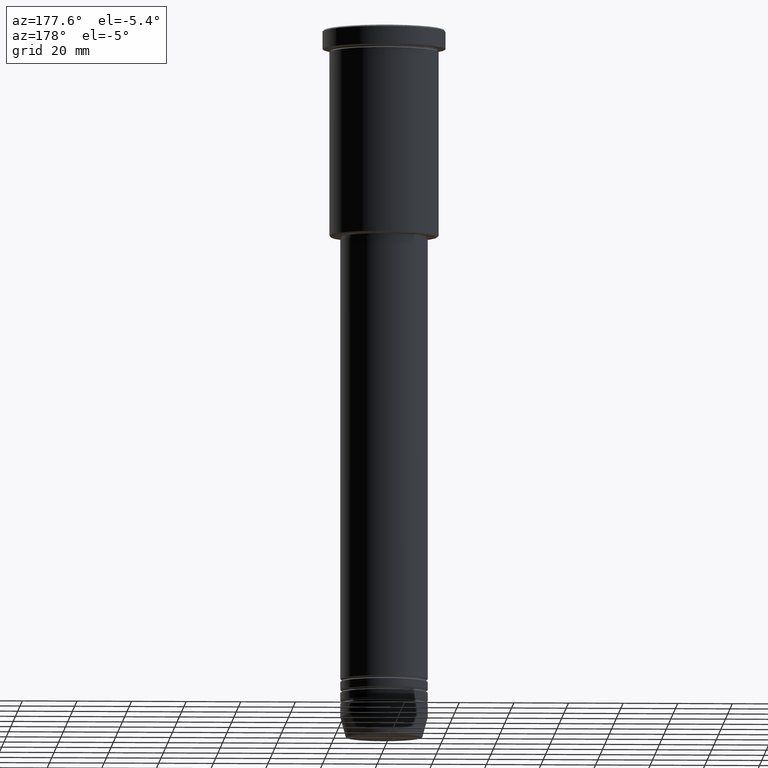
[diagram: clean part render]
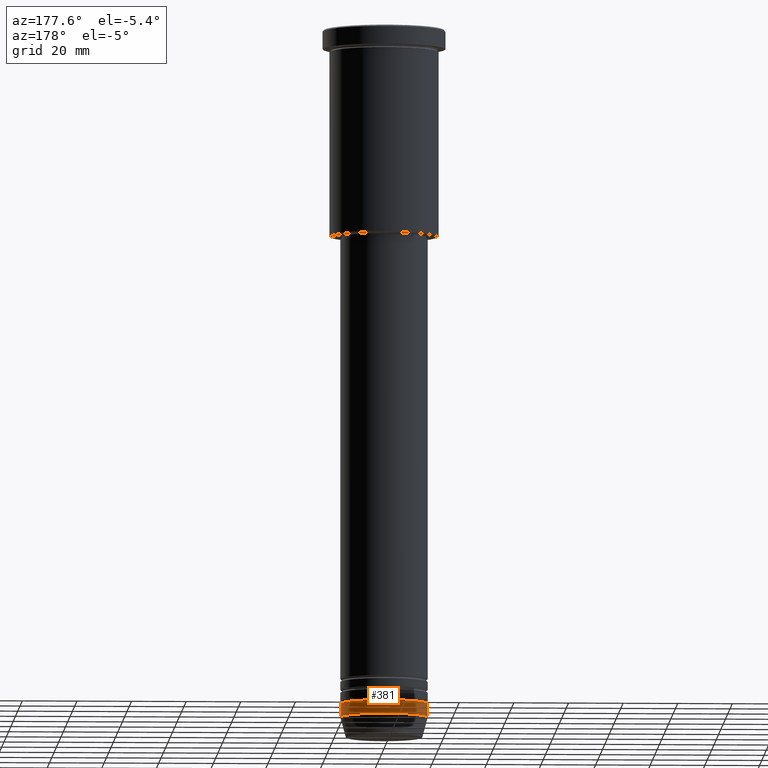
[diagram: same view with one face highlighted and labeled with its STEP entity id]
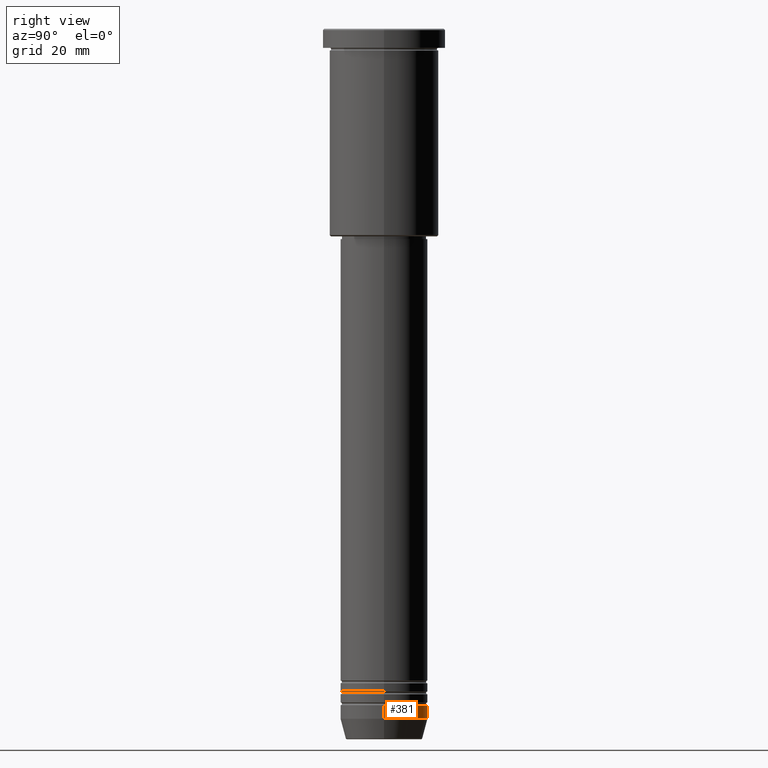
[diagram: same view with one face highlighted and labeled with its STEP entity id]
A machine part, auxiliary view. The second image highlights one B-rep face of the part: STEP entity #381.
A second angle (right view) of the same face is appended — the face is thin or edge-on in the first view.
In plain terms, the highlighted cylindrical surface (partial cylindrical patch) has radius 16 mm, axis along (-0, -0, 1).
Its self-contained STEP definition (entity closure, byte-faithful):
#14 = VERTEX_POINT ( 'NONE', #158 ) ;
#41 = EDGE_CURVE ( 'NONE', #14, #231, #714, .T. ) ;
#57 = EDGE_LOOP ( 'NONE', ( #856, #944, #688, #693 ) ) ;
#63 = CIRCLE ( 'NONE', #469, 16.00000000000000000 ) ;
#64 = CARTESIAN_POINT ( 'NONE',  ( 16.00000000000000000, 0.000000000000000000, -252.5000000000000000 ) ) ;
#76 = DIRECTION ( 'NONE',  ( -0.000000000000000000, -0.000000000000000000, 1.000000000000000000 ) ) ;
#122 = DIRECTION ( 'NONE',  ( -0.000000000000000000, -0.000000000000000000, 1.000000000000000000 ) ) ;
#142 = CARTESIAN_POINT ( 'NONE',  ( 0.000000000000000000, 0.000000000000000000, 0.000000000000000000 ) ) ;
#158 = CARTESIAN_POINT ( 'NONE',  ( -16.00000000000000000, 1.959434878635765131E-15, -252.5000000000000000 ) ) ;
#231 = VERTEX_POINT ( 'NONE', #1094 ) ;
#266 = LINE ( 'NONE', #639, #312 ) ;
#271 = CARTESIAN_POINT ( 'NONE',  ( 16.00000000000000000, 0.000000000000000000, -247.5000000000000000 ) ) ;
#300 = EDGE_CURVE ( 'NONE', #715, #14, #63, .T. ) ;
#312 = VECTOR ( 'NONE', #588, 1000.000000000000000 ) ;
#319 = EDGE_CURVE ( 'NONE', #544, #231, #978, .T. ) ;
#381 = ADVANCED_FACE ( 'NONE', ( #403 ), #690, .T. ) ;
#403 = FACE_OUTER_BOUND ( 'NONE', #57, .T. ) ;
#469 = AXIS2_PLACEMENT_3D ( 'NONE', #945, #122, #861 ) ;
#521 = VECTOR ( 'NONE', #76, 1000.000000000000000 ) ;
#544 = VERTEX_POINT ( 'NONE', #271 ) ;
#588 = DIRECTION ( 'NONE',  ( -0.000000000000000000, -0.000000000000000000, 1.000000000000000000 ) ) ;
#591 = DIRECTION ( 'NONE',  ( -0.000000000000000000, -0.000000000000000000, 1.000000000000000000 ) ) ;
#639 = CARTESIAN_POINT ( 'NONE',  ( 16.00000000000000000, 0.000000000000000000, 0.000000000000000000 ) ) ;
#688 = ORIENTED_EDGE ( 'NONE', *, *, #319, .F. ) ;
#690 = CYLINDRICAL_SURFACE ( 'NONE', #867, 16.00000000000000000 ) ;
#693 = ORIENTED_EDGE ( 'NONE', *, *, #859, .F. ) ;
#714 = LINE ( 'NONE', #899, #521 ) ;
#715 = VERTEX_POINT ( 'NONE', #64 ) ;
#755 = AXIS2_PLACEMENT_3D ( 'NONE', #765, #591, #941 ) ;
#765 = CARTESIAN_POINT ( 'NONE',  ( 0.000000000000000000, 0.000000000000000000, -247.5000000000000000 ) ) ;
#856 = ORIENTED_EDGE ( 'NONE', *, *, #300, .T. ) ;
#859 = EDGE_CURVE ( 'NONE', #715, #544, #266, .T. ) ;
#861 = DIRECTION ( 'NONE',  ( 1.000000000000000000, 0.000000000000000000, 0.000000000000000000 ) ) ;
#867 = AXIS2_PLACEMENT_3D ( 'NONE', #142, #1067, #1050 ) ;
#899 = CARTESIAN_POINT ( 'NONE',  ( -16.00000000000000000, 1.959434878635765131E-15, 0.000000000000000000 ) ) ;
#941 = DIRECTION ( 'NONE',  ( 1.000000000000000000, 0.000000000000000000, 0.000000000000000000 ) ) ;
#944 = ORIENTED_EDGE ( 'NONE', *, *, #41, .T. ) ;
#945 = CARTESIAN_POINT ( 'NONE',  ( 0.000000000000000000, 0.000000000000000000, -252.5000000000000000 ) ) ;
#978 = CIRCLE ( 'NONE', #755, 16.00000000000000000 ) ;
#1050 = DIRECTION ( 'NONE',  ( 1.000000000000000000, 0.000000000000000000, 0.000000000000000000 ) ) ;
#1067 = DIRECTION ( 'NONE',  ( -0.000000000000000000, -0.000000000000000000, 1.000000000000000000 ) ) ;
#1094 = CARTESIAN_POINT ( 'NONE',  ( -16.00000000000000000, 1.959434878635765131E-15, -247.5000000000000000 ) ) ;